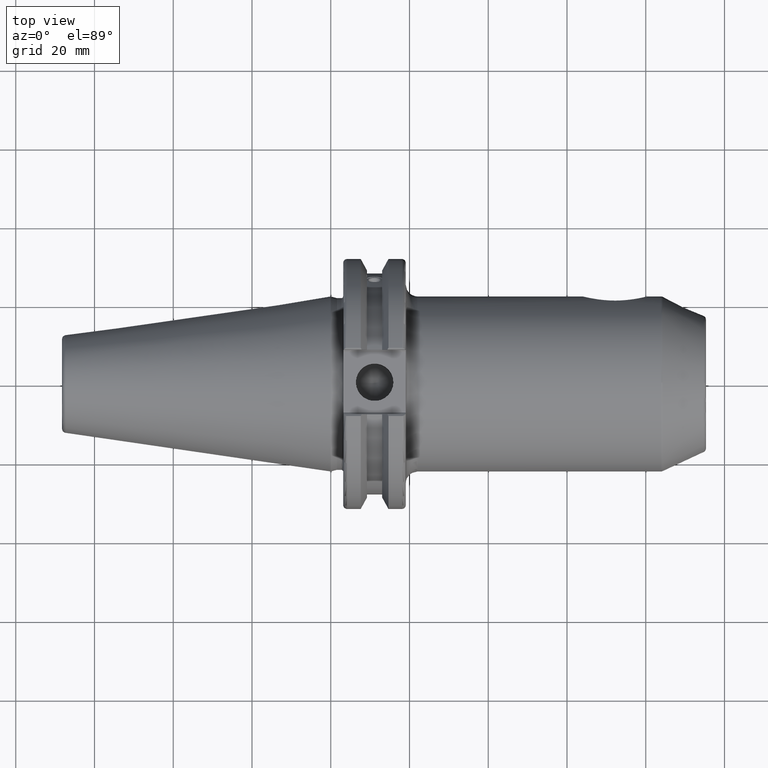
[diagram: clean part render]
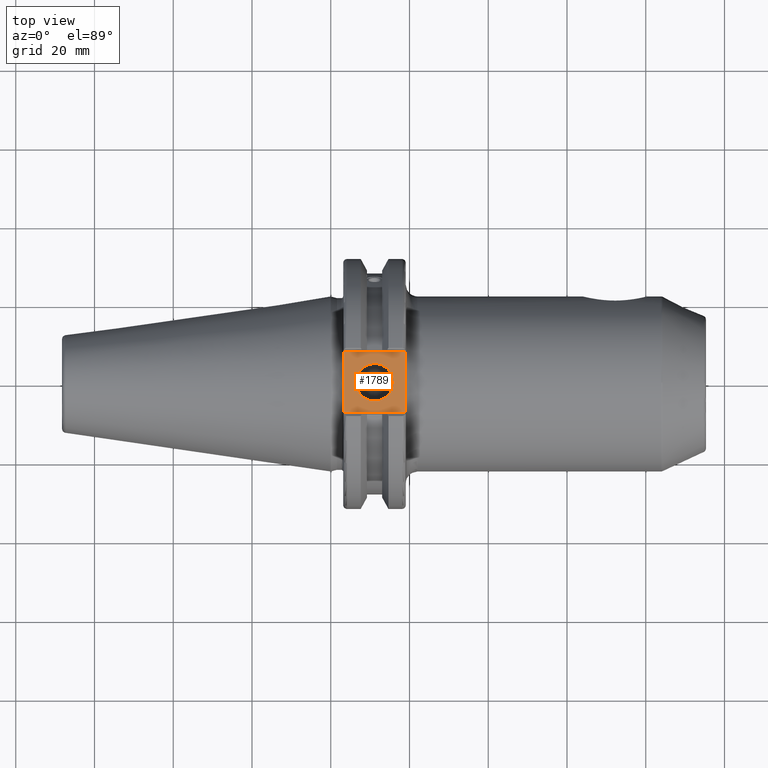
[diagram: same view with one face highlighted and labeled with its STEP entity id]
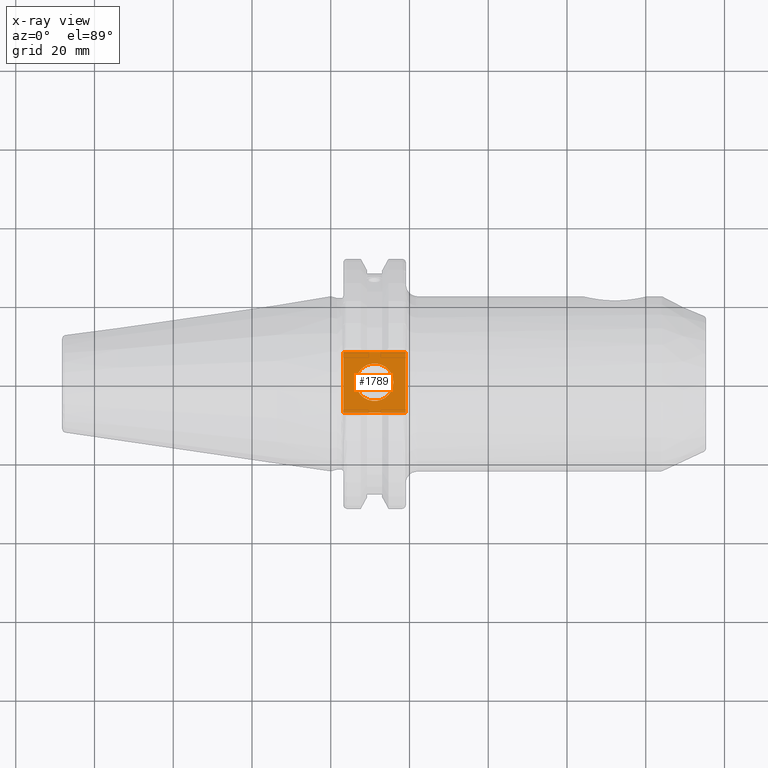
[diagram: x-ray of the same camera — body ghosted, the highlighted face saturated]
A machine part, top view. The second image highlights one B-rep face of the part: STEP entity #1789.
The next image is the same camera in x-ray: the body ghosted, the highlighted face saturated — about 0% of this face is hidden behind the body in this view.
In plain terms, the highlighted planar face has unit normal (0, 0, 1).
Its self-contained STEP definition (entity closure, byte-faithful):
#87=FACE_BOUND('',#316,.T.);
#125=PLANE('',#2022);
#210=FACE_OUTER_BOUND('',#315,.T.);
#315=EDGE_LOOP('',(#1638,#1639,#1640,#1641,#1642,#1643));
#316=EDGE_LOOP('',(#1644,#1645));
#331=B_SPLINE_CURVE_WITH_KNOTS('',3,(#2742,#2743,#2744,#2745,#2746,#2747,
#2748,#2749,#2750,#2751),.UNSPECIFIED.,.F.,.F.,(4,2,2,2,4),(2.37142831043746,
2.46406338627276,2.68658355511601,2.90910372395925,3.00173879979455),
 .UNSPECIFIED.);
#370=LINE('',#2776,#460);
#378=LINE('',#2804,#468);
#410=LINE('',#3226,#500);
#438=LINE('',#3466,#528);
#440=LINE('',#3469,#530);
#460=VECTOR('',#2127,10.);
#468=VECTOR('',#2153,10.);
#500=VECTOR('',#2361,10.);
#528=VECTOR('',#2467,10.);
#530=VECTOR('',#2471,10.);
#644=CIRCLE('',#2009,4.7625);
#645=CIRCLE('',#2010,4.7625);
#689=VERTEX_POINT('',#2739);
#690=VERTEX_POINT('',#2741);
#694=VERTEX_POINT('',#2775);
#705=VERTEX_POINT('',#2802);
#792=VERTEX_POINT('',#3223);
#793=VERTEX_POINT('',#3225);
#845=VERTEX_POINT('',#3507);
#846=VERTEX_POINT('',#3508);
#893=EDGE_CURVE('',#690,#689,#331,.F.);
#898=EDGE_CURVE('',#690,#694,#370,.T.);
#912=EDGE_CURVE('',#705,#689,#378,.T.);
#1025=EDGE_CURVE('',#792,#793,#410,.T.);
#1093=EDGE_CURVE('',#694,#792,#438,.T.);
#1095=EDGE_CURVE('',#793,#705,#440,.T.);
#1111=EDGE_CURVE('',#845,#846,#644,.T.);
#1112=EDGE_CURVE('',#846,#845,#645,.T.);
#1638=ORIENTED_EDGE('',*,*,#1093,.F.);
#1639=ORIENTED_EDGE('',*,*,#898,.F.);
#1640=ORIENTED_EDGE('',*,*,#893,.T.);
#1641=ORIENTED_EDGE('',*,*,#912,.F.);
#1642=ORIENTED_EDGE('',*,*,#1095,.F.);
#1643=ORIENTED_EDGE('',*,*,#1025,.F.);
#1644=ORIENTED_EDGE('',*,*,#1111,.T.);
#1645=ORIENTED_EDGE('',*,*,#1112,.T.);
#1789=ADVANCED_FACE('',(#210,#87),#125,.T.);
#2009=AXIS2_PLACEMENT_3D('',#3509,#2508,#2509);
#2010=AXIS2_PLACEMENT_3D('',#3510,#2510,#2511);
#2022=AXIS2_PLACEMENT_3D('',#3523,#2535,#2536);
#2127=DIRECTION('',(0.,-1.,0.));
#2153=DIRECTION('',(0.,-1.,0.));
#2361=DIRECTION('',(0.,1.,0.));
#2467=DIRECTION('',(-1.,1.31581988103722E-16,0.));
#2471=DIRECTION('',(1.,0.,0.));
#2508=DIRECTION('center_axis',(0.,0.,-1.));
#2509=DIRECTION('ref_axis',(1.,0.,0.));
#2510=DIRECTION('center_axis',(0.,0.,-1.));
#2511=DIRECTION('ref_axis',(1.,0.,0.));
#2535=DIRECTION('center_axis',(0.,0.,1.));
#2536=DIRECTION('ref_axis',(1.,0.,0.));
#2739=CARTESIAN_POINT('',(19.05,3.36164022465224,25.));
#2741=CARTESIAN_POINT('',(19.05,-3.36164022465224,25.));
#2742=CARTESIAN_POINT('Ctrl Pts',(19.05,3.36164022465224,25.));
#2743=CARTESIAN_POINT('Ctrl Pts',(19.05,3.05285663853459,25.));
#2744=CARTESIAN_POINT('Ctrl Pts',(19.0510171154146,2.68231773116263,25.));
#2745=CARTESIAN_POINT('Ctrl Pts',(19.0547457609277,1.63180686604017,25.));
#2746=CARTESIAN_POINT('Ctrl Pts',(19.0584493987231,0.741733896144157,25.));
#2747=CARTESIAN_POINT('Ctrl Pts',(19.0584493987231,-0.741733896144157,25.));
#2748=CARTESIAN_POINT('Ctrl Pts',(19.0547457609277,-1.63180686604017,25.));
#2749=CARTESIAN_POINT('Ctrl Pts',(19.0510171154146,-2.68231773116263,25.));
#2750=CARTESIAN_POINT('Ctrl Pts',(19.05,-3.05285663853459,25.));
#2751=CARTESIAN_POINT('Ctrl Pts',(19.05,-3.36164022465224,25.));
#2775=CARTESIAN_POINT('',(19.05,-7.69,25.));
#2776=CARTESIAN_POINT('',(19.05,0.,25.));
#2802=CARTESIAN_POINT('',(19.05,7.69,25.));
#2804=CARTESIAN_POINT('',(19.05,0.,25.));
#3223=CARTESIAN_POINT('',(3.175,-7.68999999999999,25.));
#3225=CARTESIAN_POINT('',(3.175,7.69,25.));
#3226=CARTESIAN_POINT('',(3.175,15.875,25.));
#3466=CARTESIAN_POINT('',(9.44125,-7.69,25.));
#3469=CARTESIAN_POINT('',(17.87875,7.69,25.));
#3507=CARTESIAN_POINT('',(15.8966,0.,25.));
#3508=CARTESIAN_POINT('',(6.3716,-5.83238038093927E-16,25.));
#3509=CARTESIAN_POINT('Origin',(11.1341,0.,25.));
#3510=CARTESIAN_POINT('Origin',(11.1341,0.,25.));
#3523=CARTESIAN_POINT('Origin',(15.7075,0.,25.));